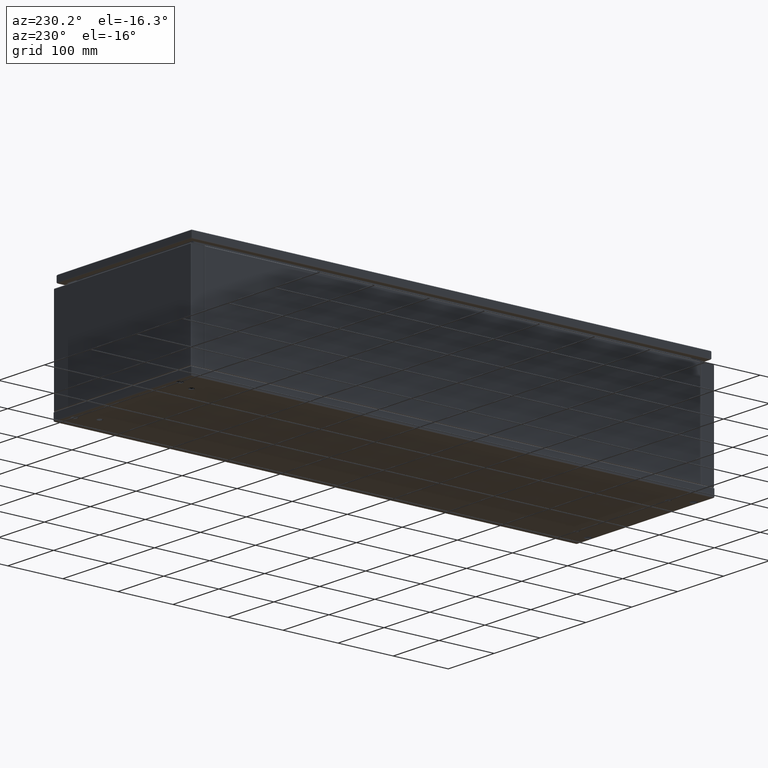
[diagram: clean part render]
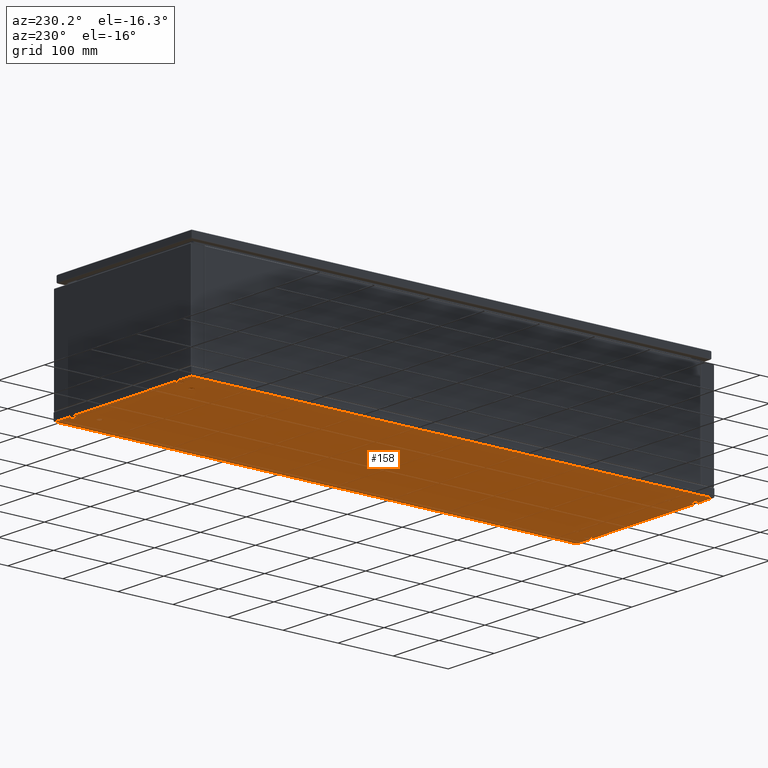
[diagram: same view with one face highlighted and labeled with its STEP entity id]
A machine part, auxiliary view. The second image highlights one B-rep face of the part: STEP entity #158.
In plain terms, the highlighted planar face has unit normal (0, 0, 1).
Its self-contained STEP definition (entity closure, byte-faithful):
#158 = ADVANCED_FACE ( 'NONE', ( #64882, #87112, #14828, #18003, #85020, #26536, #62747, #66993, #12710 ), #86400, .F. ) ;
#987 = EDGE_CURVE ( 'NONE', #54671, #22969, #68912, .T. ) ;
#2161 = CIRCLE ( 'NONE', #75489, 4.500000000000003600 ) ;
#2335 = EDGE_CURVE ( 'NONE', #50334, #49779, #16330, .T. ) ;
#2859 = EDGE_CURVE ( 'NONE', #38774, #71345, #78959, .T. ) ;
#3104 = AXIS2_PLACEMENT_3D ( 'NONE', #28138, #54377, #54676 ) ;
#3827 = ORIENTED_EDGE ( 'NONE', *, *, #37704, .T. ) ;
#3875 = DIRECTION ( 'NONE',  ( 0.0000000000000000000, 1.000000000000000000, 0.0000000000000000000 ) ) ;
#4473 = EDGE_CURVE ( 'NONE', #6410, #76117, #8484, .T. ) ;
#6205 = AXIS2_PLACEMENT_3D ( 'NONE', #8653, #22290, #84088 ) ;
#6410 = VERTEX_POINT ( 'NONE', #81123 ) ;
#6996 = AXIS2_PLACEMENT_3D ( 'NONE', #61918, #21117, #74991 ) ;
#7556 = DIRECTION ( 'NONE',  ( 0.0000000000000000000, -1.959796370949425000E-031, -1.000000000000000000 ) ) ;
#8036 = CIRCLE ( 'NONE', #18560, 5.500000000000005300 ) ;
#8484 = CIRCLE ( 'NONE', #6205, 5.500000000000005300 ) ;
#8653 = CARTESIAN_POINT ( 'NONE',  ( -115.0000000000000000, 466.1000000000000200, -1.000000000000000000 ) ) ;
#9389 = VECTOR ( 'NONE', #70860, 1000.000000000000000 ) ;
#9488 = EDGE_CURVE ( 'NONE', #9908, #16614, #2161, .T. ) ;
#9588 = EDGE_LOOP ( 'NONE', ( #48559, #10842 ) ) ;
#9908 = VERTEX_POINT ( 'NONE', #50716 ) ;
#10783 = EDGE_LOOP ( 'NONE', ( #22838, #17133 ) ) ;
#10842 = ORIENTED_EDGE ( 'NONE', *, *, #69044, .F. ) ;
#11573 = DIRECTION ( 'NONE',  ( 0.0000000000000000000, -1.959796370949425000E-031, -1.000000000000000000 ) ) ;
#11733 = ORIENTED_EDGE ( 'NONE', *, *, #18968, .T. ) ;
#11829 = CARTESIAN_POINT ( 'NONE',  ( -95.50000000000000000, -433.0000000000000000, -1.000000000000000000 ) ) ;
#12043 = DIRECTION ( 'NONE',  ( 0.0000000000000000000, -1.000000000000000000, 0.0000000000000000000 ) ) ;
#12080 = CARTESIAN_POINT ( 'NONE',  ( 100.0000000000000000, 433.0000000000000000, -1.000000000000000000 ) ) ;
#12710 = FACE_OUTER_BOUND ( 'NONE', #56801, .T. ) ;
#12805 = DIRECTION ( 'NONE',  ( 0.0000000000000000000, -1.000000000000000000, 0.0000000000000000000 ) ) ;
#13235 = ORIENTED_EDGE ( 'NONE', *, *, #987, .T. ) ;
#13271 = DIRECTION ( 'NONE',  ( 0.0000000000000000000, 1.378185986427855900E-031, 1.000000000000000000 ) ) ;
#13921 = ORIENTED_EDGE ( 'NONE', *, *, #63938, .F. ) ;
#14083 = ORIENTED_EDGE ( 'NONE', *, *, #2335, .T. ) ;
#14416 = CARTESIAN_POINT ( 'NONE',  ( 148.5000000000000000, 473.5000000000000000, -0.9999999999999180700 ) ) ;
#14828 = FACE_BOUND ( 'NONE', #87057, .T. ) ;
#15743 = CARTESIAN_POINT ( 'NONE',  ( 115.0000000000000000, 466.1000000000000200, -1.000000000000000000 ) ) ;
#16330 = LINE ( 'NONE', #32754, #68438 ) ;
#16614 = VERTEX_POINT ( 'NONE', #11829 ) ;
#16768 = CARTESIAN_POINT ( 'NONE',  ( -100.0000000000000000, -433.0000000000000000, -1.000000000000000000 ) ) ;
#17133 = ORIENTED_EDGE ( 'NONE', *, *, #57727, .F. ) ;
#17432 = VERTEX_POINT ( 'NONE', #71604 ) ;
#17719 = DIRECTION ( 'NONE',  ( 0.0000000000000000000, -1.000000000000000000, 0.0000000000000000000 ) ) ;
#17940 = DIRECTION ( 'NONE',  ( 0.0000000000000000000, -1.000000000000000000, 0.0000000000000000000 ) ) ;
#18003 = FACE_BOUND ( 'NONE', #59996, .T. ) ;
#18086 = CARTESIAN_POINT ( 'NONE',  ( 115.0000000000000000, 466.1000000000000200, -1.000000000000000000 ) ) ;
#18560 = AXIS2_PLACEMENT_3D ( 'NONE', #84277, #58222, #17719 ) ;
#18651 = CIRCLE ( 'NONE', #86069, 4.500000000000003600 ) ;
#18968 = EDGE_CURVE ( 'NONE', #16614, #9908, #83090, .T. ) ;
#19116 = CARTESIAN_POINT ( 'NONE',  ( -148.5000000000000000, -473.5000000000000000, -1.000000000000112100 ) ) ;
#21117 = DIRECTION ( 'NONE',  ( 0.0000000000000000000, -1.959796370949425000E-031, -1.000000000000000000 ) ) ;
#22205 = EDGE_LOOP ( 'NONE', ( #32002, #33535 ) ) ;
#22290 = DIRECTION ( 'NONE',  ( 0.0000000000000000000, -1.959796370949425000E-031, -1.000000000000000000 ) ) ;
#22463 = AXIS2_PLACEMENT_3D ( 'NONE', #28861, #48518, #35094 ) ;
#22817 = VERTEX_POINT ( 'NONE', #60644 ) ;
#22838 = ORIENTED_EDGE ( 'NONE', *, *, #64461, .F. ) ;
#22969 = VERTEX_POINT ( 'NONE', #84263 ) ;
#25562 = AXIS2_PLACEMENT_3D ( 'NONE', #16768, #71776, #65252 ) ;
#26536 = FACE_BOUND ( 'NONE', #10783, .T. ) ;
#27007 = CARTESIAN_POINT ( 'NONE',  ( 148.5000000000000000, -473.5000000000000000, -1.000000000000056000 ) ) ;
#27525 = ORIENTED_EDGE ( 'NONE', *, *, #2859, .F. ) ;
#27640 = CIRCLE ( 'NONE', #72140, 5.500000000000005300 ) ;
#28138 = CARTESIAN_POINT ( 'NONE',  ( 1.165734175856414000E-012, -1.238947823266488000E-013, -1.000000000000000000 ) ) ;
#28861 = CARTESIAN_POINT ( 'NONE',  ( 100.0000000000000000, -433.0000000000000000, -1.000000000000000000 ) ) ;
#29567 = CARTESIAN_POINT ( 'NONE',  ( 148.5000000000000000, 473.5000000000000000, -1.000000000000030000 ) ) ;
#29574 = DIRECTION ( 'NONE',  ( 0.0000000000000000000, 1.378185986427855900E-031, 1.000000000000000000 ) ) ;
#29787 = AXIS2_PLACEMENT_3D ( 'NONE', #15743, #49687, #63931 ) ;
#31691 = VERTEX_POINT ( 'NONE', #70413 ) ;
#32002 = ORIENTED_EDGE ( 'NONE', *, *, #4473, .F. ) ;
#32312 = CARTESIAN_POINT ( 'NONE',  ( -115.0000000000000000, -460.6000000000000200, -1.000000000000000000 ) ) ;
#32754 = CARTESIAN_POINT ( 'NONE',  ( 148.5000000000013900, -473.5000000000000000, -1.000000000000112100 ) ) ;
#32882 = DIRECTION ( 'NONE',  ( 0.0000000000000000000, -1.000000000000000000, 0.0000000000000000000 ) ) ;
#32932 = CARTESIAN_POINT ( 'NONE',  ( -148.5000000000000000, -473.5000000000000000, -1.000000000000000000 ) ) ;
#33535 = ORIENTED_EDGE ( 'NONE', *, *, #66323, .F. ) ;
#33997 = AXIS2_PLACEMENT_3D ( 'NONE', #66740, #78965, #66446 ) ;
#35094 = DIRECTION ( 'NONE',  ( 0.0000000000000000000, -1.000000000000000000, 0.0000000000000000000 ) ) ;
#35820 = CARTESIAN_POINT ( 'NONE',  ( -148.5000000000000000, 473.5000000000000000, -1.000000000000000000 ) ) ;
#36179 = AXIS2_PLACEMENT_3D ( 'NONE', #43874, #29574, #84787 ) ;
#36673 = AXIS2_PLACEMENT_3D ( 'NONE', #12080, #13271, #32882 ) ;
#37102 = DIRECTION ( 'NONE',  ( 0.0000000000000000000, 1.378185986427855900E-031, 1.000000000000000000 ) ) ;
#37704 = EDGE_CURVE ( 'NONE', #81593, #79525, #66533, .T. ) ;
#37799 = ORIENTED_EDGE ( 'NONE', *, *, #48646, .T. ) ;
#38774 = VERTEX_POINT ( 'NONE', #60607 ) ;
#39074 = ORIENTED_EDGE ( 'NONE', *, *, #56554, .T. ) ;
#39449 = DIRECTION ( 'NONE',  ( 0.0000000000000000000, 1.000000000000000000, 0.0000000000000000000 ) ) ;
#40682 = DIRECTION ( 'NONE',  ( 4.930380657631319400E-032, 1.000000000000000000, -1.084202172485503800E-016 ) ) ;
#41188 = CARTESIAN_POINT ( 'NONE',  ( 115.0000000000000000, -466.1000000000000200, -1.000000000000000000 ) ) ;
#43175 = LINE ( 'NONE', #32932, #70762 ) ;
#43392 = CIRCLE ( 'NONE', #36179, 4.500000000000003600 ) ;
#43499 = CARTESIAN_POINT ( 'NONE',  ( 104.5000000000000100, 433.0000000000000000, -1.000000000000000000 ) ) ;
#43572 = EDGE_CURVE ( 'NONE', #53186, #17432, #60164, .T. ) ;
#43874 = CARTESIAN_POINT ( 'NONE',  ( -100.0000000000000000, 433.0000000000000000, -1.000000000000000000 ) ) ;
#44268 = LINE ( 'NONE', #35820, #76103 ) ;
#47128 = ORIENTED_EDGE ( 'NONE', *, *, #86933, .T. ) ;
#47448 = CARTESIAN_POINT ( 'NONE',  ( -95.50000000000000000, 433.0000000000000000, -1.000000000000000000 ) ) ;
#48518 = DIRECTION ( 'NONE',  ( 0.0000000000000000000, 1.378185986427855900E-031, 1.000000000000000000 ) ) ;
#48559 = ORIENTED_EDGE ( 'NONE', *, *, #71608, .F. ) ;
#48646 = EDGE_CURVE ( 'NONE', #17432, #53186, #59143, .T. ) ;
#49454 = EDGE_LOOP ( 'NONE', ( #13921, #27525 ) ) ;
#49687 = DIRECTION ( 'NONE',  ( 0.0000000000000000000, -1.959796370949425000E-031, -1.000000000000000000 ) ) ;
#49779 = VERTEX_POINT ( 'NONE', #19116 ) ;
#50285 = AXIS2_PLACEMENT_3D ( 'NONE', #41188, #7556, #75059 ) ;
#50334 = VERTEX_POINT ( 'NONE', #27007 ) ;
#50716 = CARTESIAN_POINT ( 'NONE',  ( -104.5000000000000100, -433.0000000000000000, -1.000000000000000000 ) ) ;
#50876 = EDGE_LOOP ( 'NONE', ( #13235, #47128 ) ) ;
#51057 = CARTESIAN_POINT ( 'NONE',  ( -115.0000000000000000, -471.6000000000000200, -1.000000000000000000 ) ) ;
#51455 = ORIENTED_EDGE ( 'NONE', *, *, #43572, .T. ) ;
#51581 = CARTESIAN_POINT ( 'NONE',  ( 115.0000000000000000, -466.1000000000000200, -1.000000000000000000 ) ) ;
#52745 = DIRECTION ( 'NONE',  ( 0.0000000000000000000, -1.959796370949425000E-031, -1.000000000000000000 ) ) ;
#53186 = VERTEX_POINT ( 'NONE', #43499 ) ;
#54377 = DIRECTION ( 'NONE',  ( 1.358996306020489600E-062, 1.378185986427855900E-031, 1.000000000000000000 ) ) ;
#54671 = VERTEX_POINT ( 'NONE', #57590 ) ;
#54676 = DIRECTION ( 'NONE',  ( 1.000000000000000000, -9.860761315262649800E-032, 0.0000000000000000000 ) ) ;
#56292 = VERTEX_POINT ( 'NONE', #72559 ) ;
#56554 = EDGE_CURVE ( 'NONE', #79525, #81593, #43392, .T. ) ;
#56801 = EDGE_LOOP ( 'NONE', ( #14083, #60632, #81624, #67278 ) ) ;
#57512 = CIRCLE ( 'NONE', #50285, 5.500000000000005300 ) ;
#57590 = CARTESIAN_POINT ( 'NONE',  ( 104.5000000000000100, -433.0000000000000000, -1.000000000000000000 ) ) ;
#57727 = EDGE_CURVE ( 'NONE', #65193, #58804, #8036, .T. ) ;
#58069 = EDGE_CURVE ( 'NONE', #22817, #58892, #44268, .T. ) ;
#58222 = DIRECTION ( 'NONE',  ( 0.0000000000000000000, -1.959796370949425000E-031, -1.000000000000000000 ) ) ;
#58804 = VERTEX_POINT ( 'NONE', #32312 ) ;
#58892 = VERTEX_POINT ( 'NONE', #14416 ) ;
#59143 = CIRCLE ( 'NONE', #71056, 4.500000000000003600 ) ;
#59996 = EDGE_LOOP ( 'NONE', ( #3827, #39074 ) ) ;
#60164 = CIRCLE ( 'NONE', #36673, 4.500000000000003600 ) ;
#60607 = CARTESIAN_POINT ( 'NONE',  ( 115.0000000000000000, 460.6000000000000200, -1.000000000000000000 ) ) ;
#60632 = ORIENTED_EDGE ( 'NONE', *, *, #82069, .T. ) ;
#60644 = CARTESIAN_POINT ( 'NONE',  ( -148.5000000000000000, 473.5000000000000000, -1.000000000000000000 ) ) ;
#61526 = LINE ( 'NONE', #29567, #9389 ) ;
#61918 = CARTESIAN_POINT ( 'NONE',  ( -115.0000000000000000, -466.1000000000000200, -1.000000000000000000 ) ) ;
#62157 = CIRCLE ( 'NONE', #29787, 5.500000000000005300 ) ;
#62747 = FACE_BOUND ( 'NONE', #22205, .T. ) ;
#63660 = AXIS2_PLACEMENT_3D ( 'NONE', #18086, #11573, #3875 ) ;
#63931 = DIRECTION ( 'NONE',  ( 0.0000000000000000000, 1.000000000000000000, 0.0000000000000000000 ) ) ;
#63938 = EDGE_CURVE ( 'NONE', #71345, #38774, #62157, .T. ) ;
#64461 = EDGE_CURVE ( 'NONE', #58804, #65193, #81219, .T. ) ;
#64462 = DIRECTION ( 'NONE',  ( 0.0000000000000000000, -1.000000000000000000, 0.0000000000000000000 ) ) ;
#64882 = FACE_BOUND ( 'NONE', #74255, .T. ) ;
#65193 = VERTEX_POINT ( 'NONE', #51057 ) ;
#65252 = DIRECTION ( 'NONE',  ( 0.0000000000000000000, -1.000000000000000000, 0.0000000000000000000 ) ) ;
#66323 = EDGE_CURVE ( 'NONE', #76117, #6410, #27640, .T. ) ;
#66446 = DIRECTION ( 'NONE',  ( 0.0000000000000000000, -1.000000000000000000, 0.0000000000000000000 ) ) ;
#66533 = CIRCLE ( 'NONE', #33997, 4.500000000000003600 ) ;
#66740 = CARTESIAN_POINT ( 'NONE',  ( -100.0000000000000000, 433.0000000000000000, -1.000000000000000000 ) ) ;
#66993 = FACE_BOUND ( 'NONE', #49454, .T. ) ;
#67042 = DIRECTION ( 'NONE',  ( 0.0000000000000000000, 1.378185986427855900E-031, 1.000000000000000000 ) ) ;
#67225 = DIRECTION ( 'NONE',  ( 0.0000000000000000000, 1.378185986427855900E-031, 1.000000000000000000 ) ) ;
#67278 = ORIENTED_EDGE ( 'NONE', *, *, #80249, .T. ) ;
#68438 = VECTOR ( 'NONE', #73786, 1000.000000000000000 ) ;
#68507 = CARTESIAN_POINT ( 'NONE',  ( -115.0000000000000000, 460.6000000000000200, -1.000000000000000000 ) ) ;
#68912 = CIRCLE ( 'NONE', #22463, 4.500000000000003600 ) ;
#69044 = EDGE_CURVE ( 'NONE', #56292, #31691, #80554, .T. ) ;
#69407 = DIRECTION ( 'NONE',  ( 1.000000000000000000, -9.860761315262649800E-032, 0.0000000000000000000 ) ) ;
#70413 = CARTESIAN_POINT ( 'NONE',  ( 115.0000000000000000, -460.6000000000000200, -1.000000000000000000 ) ) ;
#70762 = VECTOR ( 'NONE', #40682, 1000.000000000000000 ) ;
#70860 = DIRECTION ( 'NONE',  ( -4.930380657631319400E-032, -1.000000000000000000, 2.241877273023260200E-032 ) ) ;
#70964 = CARTESIAN_POINT ( 'NONE',  ( -100.0000000000000000, -433.0000000000000000, -1.000000000000000000 ) ) ;
#71056 = AXIS2_PLACEMENT_3D ( 'NONE', #80566, #67225, #12805 ) ;
#71345 = VERTEX_POINT ( 'NONE', #79824 ) ;
#71604 = CARTESIAN_POINT ( 'NONE',  ( 95.50000000000000000, 433.0000000000000000, -1.000000000000000000 ) ) ;
#71608 = EDGE_CURVE ( 'NONE', #31691, #56292, #57512, .T. ) ;
#71776 = DIRECTION ( 'NONE',  ( 0.0000000000000000000, 1.378185986427855900E-031, 1.000000000000000000 ) ) ;
#72140 = AXIS2_PLACEMENT_3D ( 'NONE', #73321, #72756, #39449 ) ;
#72559 = CARTESIAN_POINT ( 'NONE',  ( 115.0000000000000000, -471.6000000000000200, -1.000000000000000000 ) ) ;
#72756 = DIRECTION ( 'NONE',  ( 0.0000000000000000000, -1.959796370949425000E-031, -1.000000000000000000 ) ) ;
#73321 = CARTESIAN_POINT ( 'NONE',  ( -115.0000000000000000, 466.1000000000000200, -1.000000000000000000 ) ) ;
#73786 = DIRECTION ( 'NONE',  ( -1.000000000000000000, 9.860761315262649800E-032, 0.0000000000000000000 ) ) ;
#74255 = EDGE_LOOP ( 'NONE', ( #51455, #37799 ) ) ;
#74609 = AXIS2_PLACEMENT_3D ( 'NONE', #51581, #52745, #17940 ) ;
#74991 = DIRECTION ( 'NONE',  ( 0.0000000000000000000, -1.000000000000000000, 0.0000000000000000000 ) ) ;
#75059 = DIRECTION ( 'NONE',  ( 0.0000000000000000000, -1.000000000000000000, 0.0000000000000000000 ) ) ;
#75489 = AXIS2_PLACEMENT_3D ( 'NONE', #70964, #37102, #64462 ) ;
#76103 = VECTOR ( 'NONE', #69407, 1000.000000000000000 ) ;
#76117 = VERTEX_POINT ( 'NONE', #68507 ) ;
#78959 = CIRCLE ( 'NONE', #63660, 5.500000000000005300 ) ;
#78965 = DIRECTION ( 'NONE',  ( 0.0000000000000000000, 1.378185986427855900E-031, 1.000000000000000000 ) ) ;
#79525 = VERTEX_POINT ( 'NONE', #80250 ) ;
#79824 = CARTESIAN_POINT ( 'NONE',  ( 115.0000000000000000, 471.6000000000000200, -1.000000000000000000 ) ) ;
#80249 = EDGE_CURVE ( 'NONE', #58892, #50334, #61526, .T. ) ;
#80250 = CARTESIAN_POINT ( 'NONE',  ( -104.5000000000000100, 433.0000000000000000, -1.000000000000000000 ) ) ;
#80554 = CIRCLE ( 'NONE', #74609, 5.500000000000005300 ) ;
#80566 = CARTESIAN_POINT ( 'NONE',  ( 100.0000000000000000, 433.0000000000000000, -1.000000000000000000 ) ) ;
#80677 = CARTESIAN_POINT ( 'NONE',  ( 100.0000000000000000, -433.0000000000000000, -1.000000000000000000 ) ) ;
#81123 = CARTESIAN_POINT ( 'NONE',  ( -115.0000000000000000, 471.6000000000000200, -1.000000000000000000 ) ) ;
#81219 = CIRCLE ( 'NONE', #6996, 5.500000000000005300 ) ;
#81593 = VERTEX_POINT ( 'NONE', #47448 ) ;
#81624 = ORIENTED_EDGE ( 'NONE', *, *, #58069, .T. ) ;
#82069 = EDGE_CURVE ( 'NONE', #49779, #22817, #43175, .T. ) ;
#83090 = CIRCLE ( 'NONE', #25562, 4.500000000000003600 ) ;
#83403 = ORIENTED_EDGE ( 'NONE', *, *, #9488, .T. ) ;
#84088 = DIRECTION ( 'NONE',  ( 0.0000000000000000000, 1.000000000000000000, 0.0000000000000000000 ) ) ;
#84263 = CARTESIAN_POINT ( 'NONE',  ( 95.50000000000000000, -433.0000000000000000, -1.000000000000000000 ) ) ;
#84277 = CARTESIAN_POINT ( 'NONE',  ( -115.0000000000000000, -466.1000000000000200, -1.000000000000000000 ) ) ;
#84787 = DIRECTION ( 'NONE',  ( 0.0000000000000000000, -1.000000000000000000, 0.0000000000000000000 ) ) ;
#85020 = FACE_BOUND ( 'NONE', #9588, .T. ) ;
#86069 = AXIS2_PLACEMENT_3D ( 'NONE', #80677, #67042, #12043 ) ;
#86400 = PLANE ( 'NONE',  #3104 ) ;
#86933 = EDGE_CURVE ( 'NONE', #22969, #54671, #18651, .T. ) ;
#87057 = EDGE_LOOP ( 'NONE', ( #11733, #83403 ) ) ;
#87112 = FACE_BOUND ( 'NONE', #50876, .T. ) ;